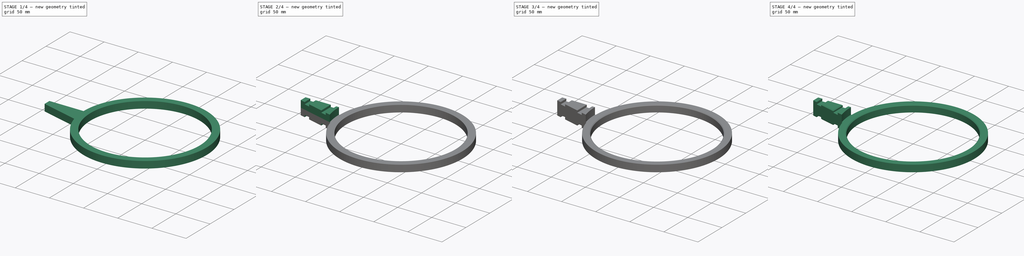
[diagram: build sequence overview — one tinted view per stage of 4, left to right]
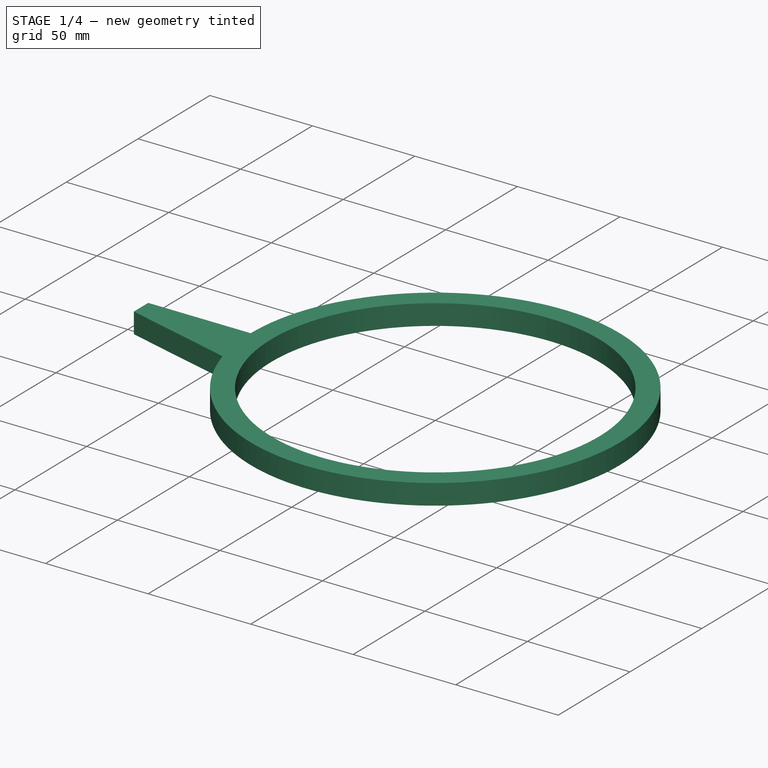
[diagram: stage 1 of 4 — iso view after this stage's code; geometry added in this stage tinted green]
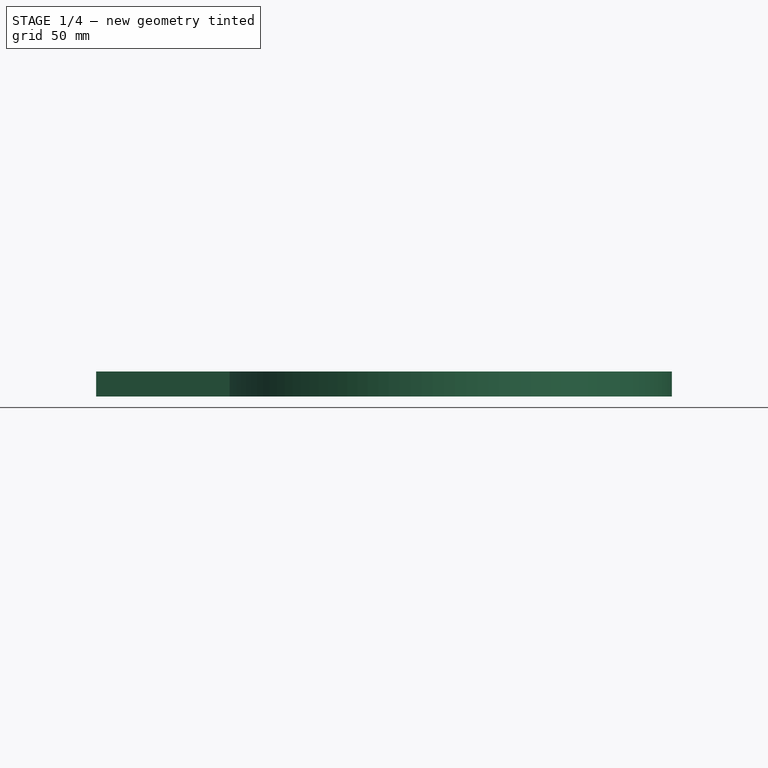
[diagram: stage 1 of 4 — front view after this stage's code; geometry added in this stage tinted green]
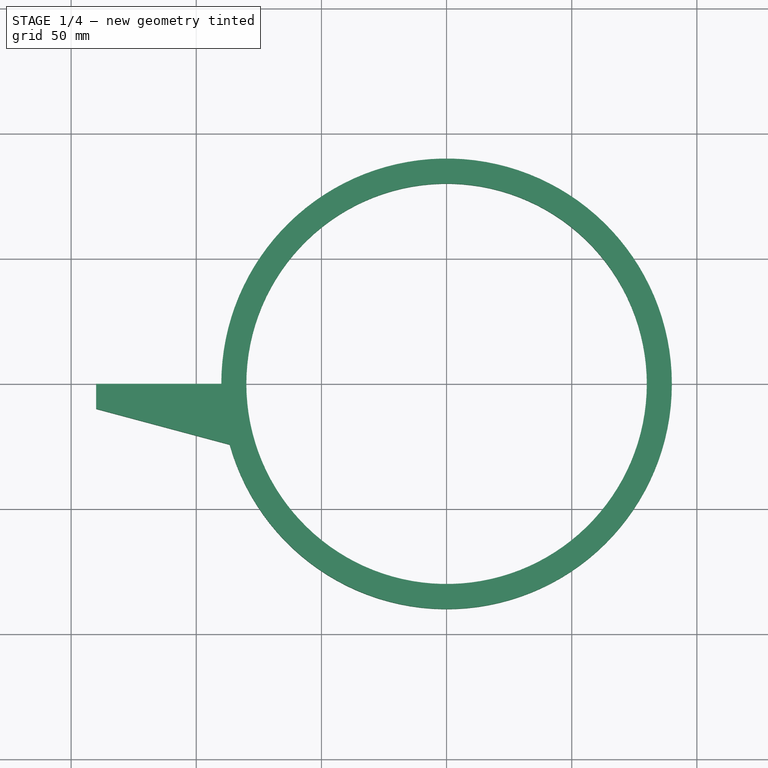
[diagram: stage 1 of 4 — top view after this stage's code; geometry added in this stage tinted green]
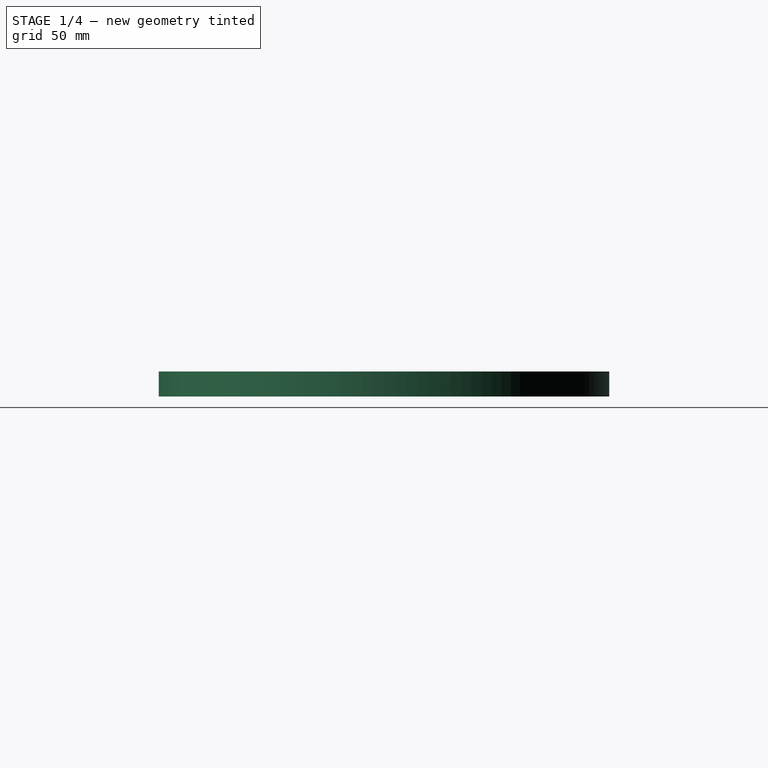
[diagram: stage 1 of 4 — right view after this stage's code; geometry added in this stage tinted green]
FCSTD DOCUMENT  (FreeCAD 0.18.3R)
Label: fluegel
License: All rights reserved
LicenseURL: http://en.wikipedia.org/wiki/All_rights_reserved
objects: Sketcher::SketchObject×6, PartDesign::Chamfer×4, PartDesign::Pad×3, PartDesign::Pocket×2, PartDesign::Body×1
note: 21 computed .brp shape members not serialized (recipe doc carries the construction recipe); baked Part::Feature solids carry a one-line shape summary decoded from their .brp

FEATURE [Sketcher::SketchObject] Sketch
  MapMode = 5
  Support = -> [XY_Plane]
  sketch-geometry (2):
    g0: Circle CenterX=0 CenterY=0 CenterZ=0 NormalX=0 NormalY=0 NormalZ=1 AngleXU=0 Radius=80
    g1: Circle CenterX=0 CenterY=0 CenterZ=0 NormalX=0 NormalY=0 NormalZ=1 AngleXU=0 Radius=90
  constraints (4):
    c: Radius(g0) = 80
    c: Coincident(g-1,g0)
    c: Coincident(g1,g0)
    c: Radius(g1) = 90
FEATURE [PartDesign::Pad] Pad
  Length = 10
  Length2 = 100
  Profile = -> Sketch
  Type = 0
FEATURE [Sketcher::SketchObject] Sketch001
  MapMode = 5
  Support = -> [XY_Plane]
  sketch-geometry (4):
    g0: LineSegment StartX=-86.6595 StartY=-24.2925 StartZ=0 EndX=-140 EndY=-10 EndZ=0
    g1: LineSegment StartX=-140 StartY=-10 StartZ=0 EndX=-140 EndY=1.07e-14 EndZ=0
    g2: LineSegment StartX=-140 StartY=1.1e-14 StartZ=0 EndX=-90 EndY=1.1e-14 EndZ=0
    g3: ArcOfCircle CenterX=0 CenterY=0 CenterZ=0 NormalX=0 NormalY=0 NormalZ=1 AngleXU=0 Radius=90 StartAngle=3.14159 EndAngle=3.4149
  constraints (12):
    c: Coincident(g0,g1)
    c: Coincident(g1,g2)
    c: Coincident(g3,g-1)
    c: Coincident(g3,g2)
    c: Coincident(g3,g0)
    c: Radius(g3) = 90
    c: Horizontal(g2)
    c: PointOnObject(g2,g-1)
    c: Vertical(g1)
    c: Distance(g2) = 50
    c: Distance(g1) = 10
    c: Angle(g0,g1) = 1.8326
FEATURE [PartDesign::Pad] Pad001
  BaseFeature = -> Pad
  Length = 10
  Length2 = 100
  Profile = -> Sketch001
  Type = 0
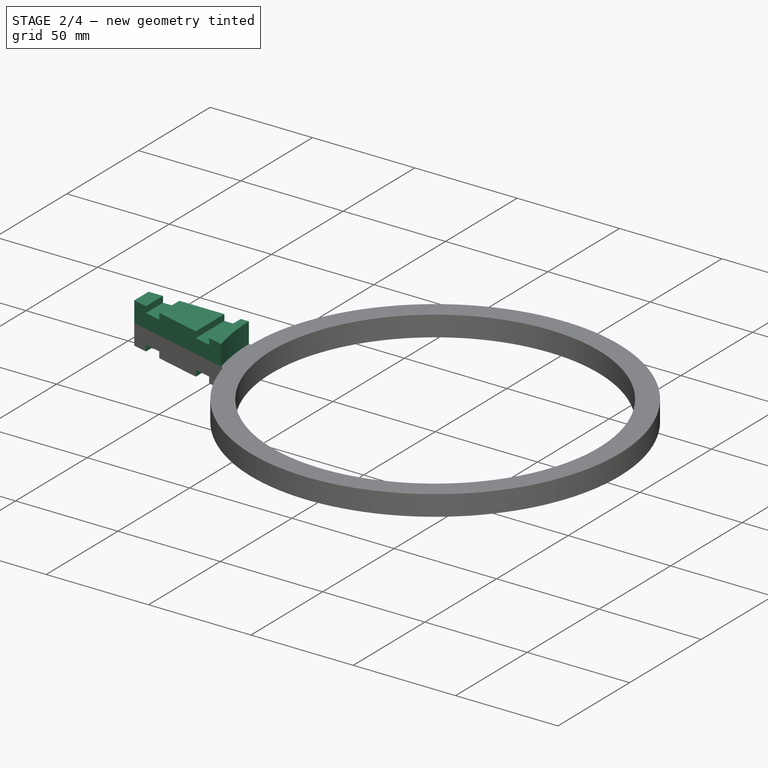
[diagram: stage 2 of 4 — iso view after this stage's code; geometry added in this stage tinted green]
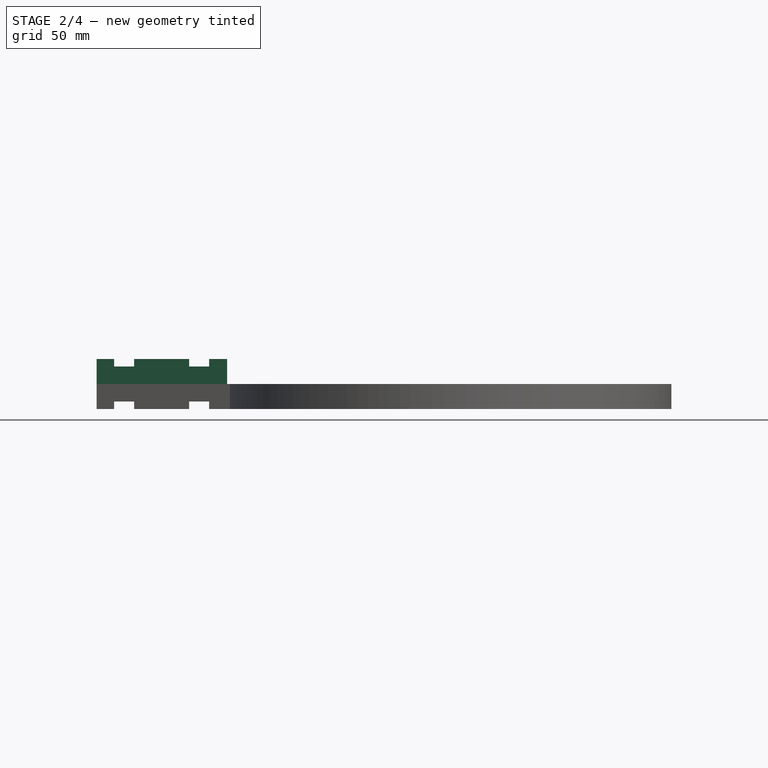
[diagram: stage 2 of 4 — front view after this stage's code; geometry added in this stage tinted green]
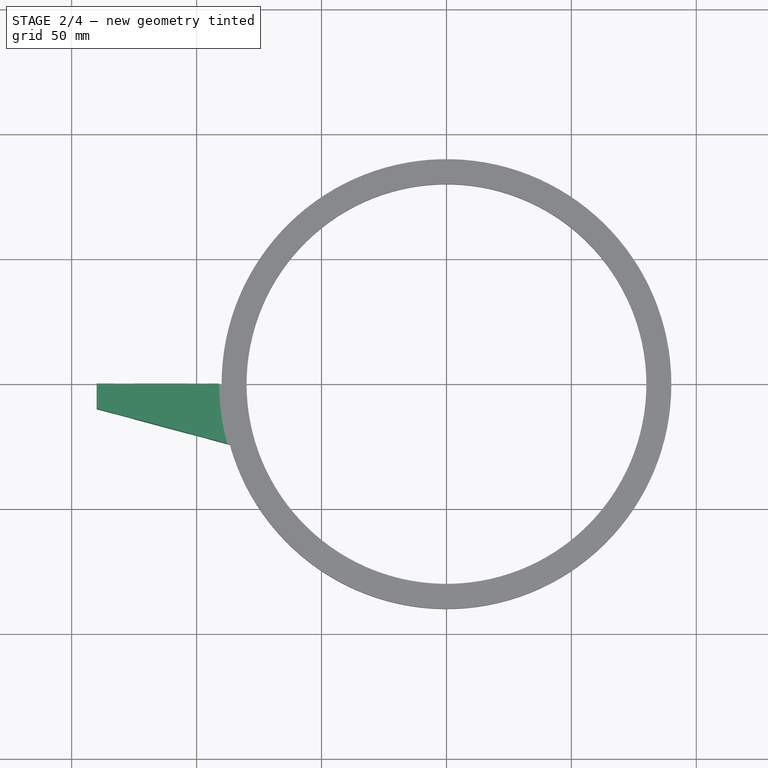
[diagram: stage 2 of 4 — top view after this stage's code; geometry added in this stage tinted green]
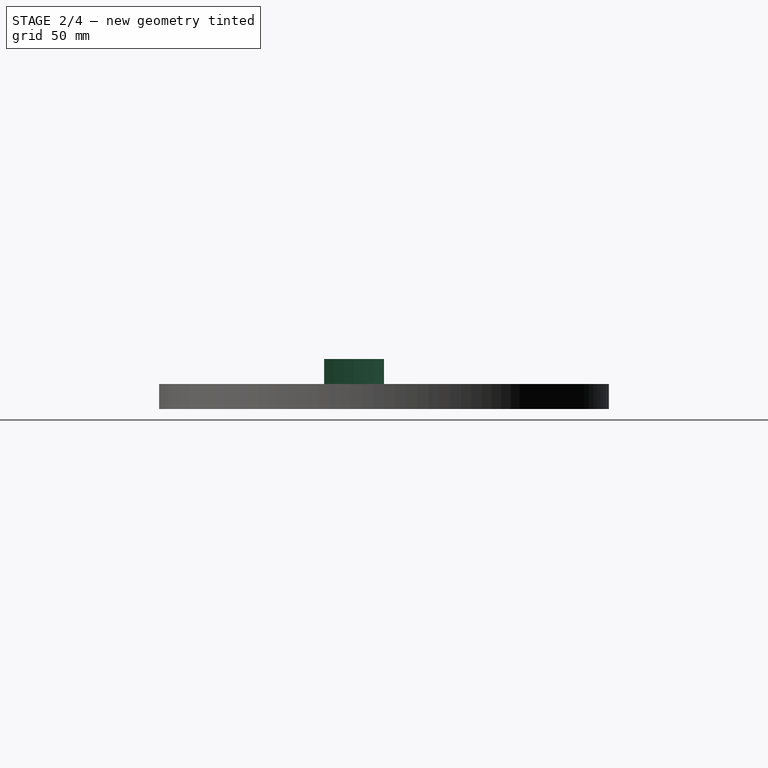
[diagram: stage 2 of 4 — right view after this stage's code; geometry added in this stage tinted green]
FEATURE [Sketcher::SketchObject] Sketch002
  MapMode = 5
  Support = -> [XY_Plane]
  sketch-geometry (4):
    g0: LineSegment StartX=-91 StartY=0 StartZ=0 EndX=-140 EndY=0 EndZ=0
    g1: LineSegment StartX=-140 StartY=0 StartZ=0 EndX=-140 EndY=-10 EndZ=0
    g2: LineSegment StartX=-140 StartY=-10 StartZ=0 EndX=-87.7803 EndY=-23.9922 EndZ=0
    g3: ArcOfCircle CenterX=0 CenterY=0 CenterZ=0 NormalX=0 NormalY=0 NormalZ=1 AngleXU=0 Radius=91 StartAngle=3.14159 EndAngle=3.4084
  constraints (12):
    c: Coincident(g0,g1)
    c: Coincident(g1,g2)
    c: Angle(g2,g1) = 1.8326
    c: Distance(g1) = 10
    c: Vertical(g1)
    c: Horizontal(g0)
    c: Coincident(g3,g-1)
    c: Coincident(g3,g0)
    c: Coincident(g2,g3)
    c: Radius(g3) = 91
    c: Distance(g0) = 49
    c: PointOnObject(g0,g-1)
FEATURE [PartDesign::Pad] Pad002
  BaseFeature = -> Pad001
  Length = 20
  Length2 = 100
  Profile = -> Sketch002
  Type = 0
FEATURE [Sketcher::SketchObject] Sketch003
  MapMode = 5
  Placement = pos=(0,0,0) rot=(1,0,0;1.5708rad)
  Support = -> [XZ_Plane]
  sketch-geometry (16):
    g0: LineSegment StartX=-133 StartY=20 StartZ=0 EndX=-125 EndY=20 EndZ=0
    g1: LineSegment StartX=-125 StartY=20 StartZ=0 EndX=-125 EndY=17 EndZ=0
    g2: LineSegment StartX=-125 StartY=17 StartZ=0 EndX=-133 EndY=17 EndZ=0
    g3: LineSegment StartX=-133 StartY=17 StartZ=0 EndX=-133 EndY=20 EndZ=0
    g4: LineSegment StartX=-103 StartY=20 StartZ=0 EndX=-95 EndY=20 EndZ=0
    g5: LineSegment StartX=-95 StartY=20 StartZ=0 EndX=-95 EndY=17 EndZ=0
    g6: LineSegment StartX=-95 StartY=17 StartZ=0 EndX=-103 EndY=17 EndZ=0
    g7: LineSegment StartX=-103 StartY=17 StartZ=0 EndX=-103 EndY=20 EndZ=0
    g8: LineSegment StartX=-133 StartY=0 StartZ=0 EndX=-125 EndY=0 EndZ=0
    g9: LineSegment StartX=-125 StartY=0 StartZ=0 EndX=-125 EndY=3 EndZ=0
    g10: LineSegment StartX=-125 StartY=3 StartZ=0 EndX=-133 EndY=3 EndZ=0
    g11: LineSegment StartX=-133 StartY=3 StartZ=0 EndX=-133 EndY=0 EndZ=0
    g12: LineSegment StartX=-103 StartY=0 StartZ=0 EndX=-95 EndY=0 EndZ=0
    g13: LineSegment StartX=-95 StartY=0 StartZ=0 EndX=-95 EndY=3 EndZ=0
    g14: LineSegment StartX=-95 StartY=3 StartZ=0 EndX=-103 EndY=3 EndZ=0
    g15: LineSegment StartX=-103 StartY=3 StartZ=0 EndX=-103 EndY=0 EndZ=0
  constraints (48):
    c: Coincident(g0,g1)
    c: Coincident(g1,g2)
    c: Coincident(g2,g3)
    c: Coincident(g3,g0)
    c: Horizontal(g0)
    c: Horizontal(g2)
    c: Vertical(g1)
    c: Vertical(g3)
    c: Coincident(g4,g5)
    c: Coincident(g5,g6)
    c: Coincident(g6,g7)
    c: Coincident(g7,g4)
    c: Horizontal(g4)
    c: Horizontal(g6)
    c: Vertical(g5)
    c: Vertical(g7)
    c: Coincident(g8,g9)
    c: Coincident(g9,g10)
    c: Coincident(g10,g11)
    c: Coincident(g11,g8)
    c: Horizontal(g8)
    c: Horizontal(g10)
    c: Vertical(g9)
    c: Vertical(g11)
    c: Coincident(g12,g13)
    c: Coincident(g13,g14)
    c: Coincident(g14,g15)
    c: Coincident(g15,g12)
    c: Horizontal(g12)
    c: Horizontal(g14)
    c: Vertical(g13)
    c: Vertical(g15)
    c: PointOnObject(g8,g-1)
    c: PointOnObject(g12,g-1)
    c: Distance(g9) = 3
    c: Equal(g15,g9)
    c: Equal(g1,g9)
    c: Equal(g9,g7)
    c: Distance(g10) = 8
    c: Equal(g0,g10)
    c: Equal(g10,g4)
    c: Equal(g14,g10)
    c: DistanceY(g-1,g4) = 20
    c: DistanceY(g-1,g0) = 20
    c: DistanceX(g12,g-1) = 95
    c: DistanceX(g5,g-1) = 95
    c: DistanceX(g1,g-1) = 125
    c: DistanceX(g8,g-1) = 125
FEATURE [PartDesign::Pocket] Pocket
  BaseFeature = -> Pad002
  Length = 52
  Length2 = 100
  Midplane = true
  Profile = -> Sketch003
  Type = 0
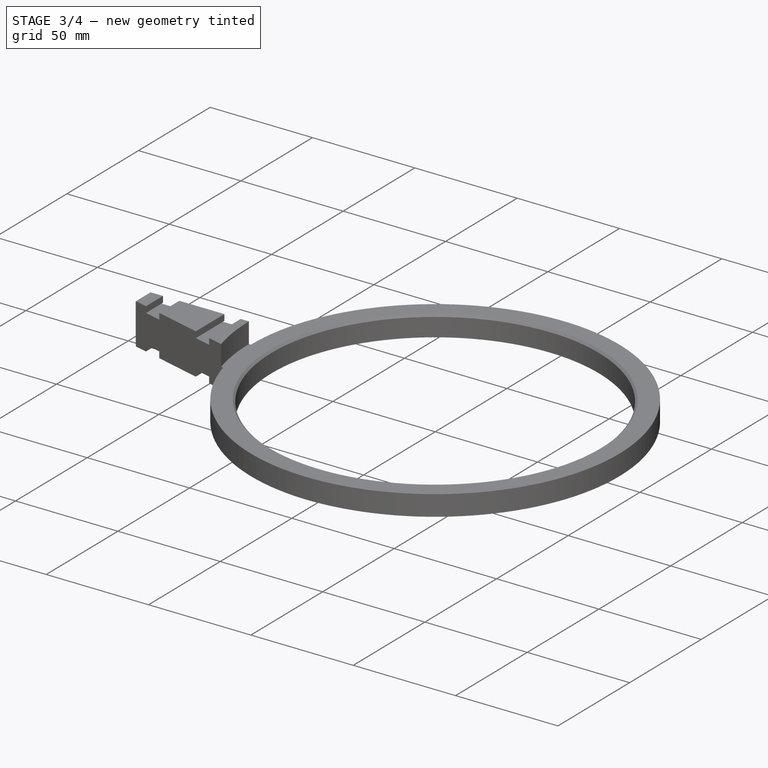
[diagram: stage 3 of 4 — iso view after this stage's code; geometry added in this stage tinted green]
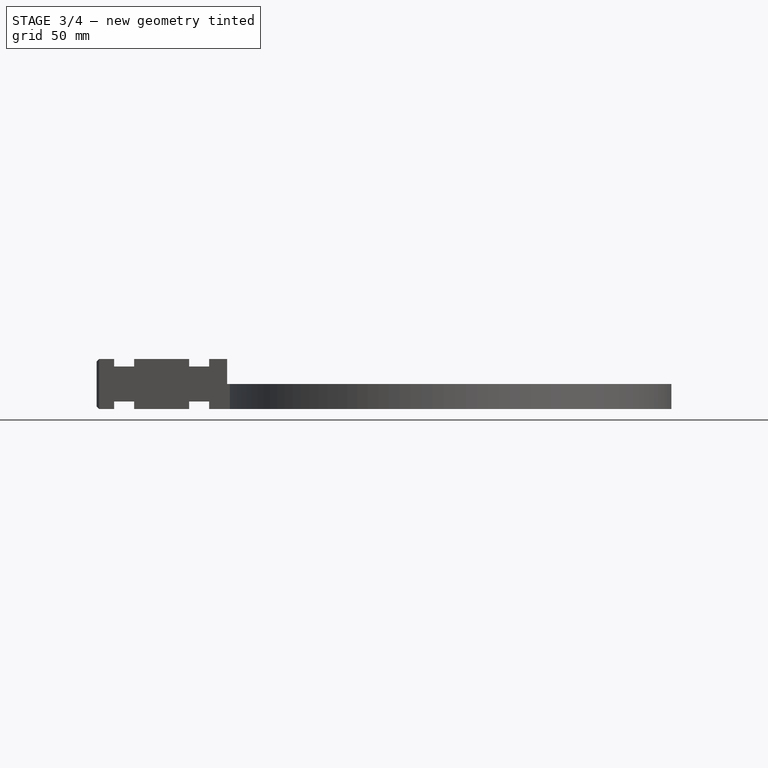
[diagram: stage 3 of 4 — front view after this stage's code; geometry added in this stage tinted green]
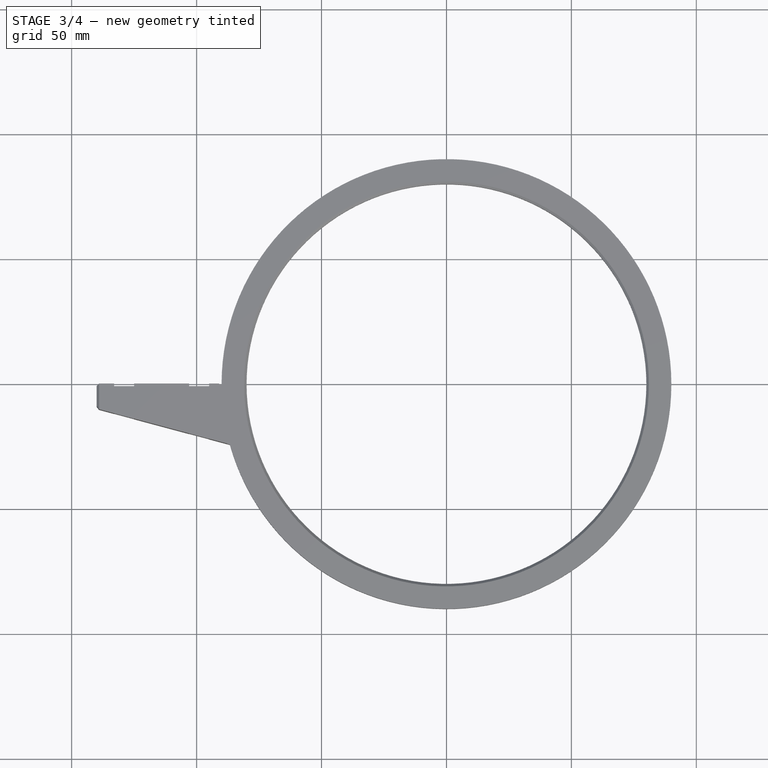
[diagram: stage 3 of 4 — top view after this stage's code; geometry added in this stage tinted green]
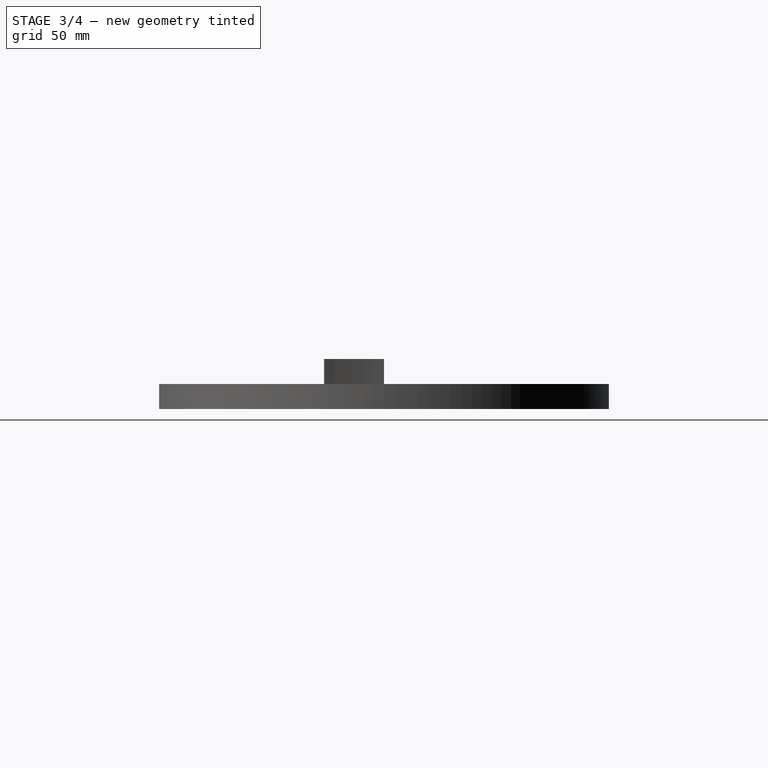
[diagram: stage 3 of 4 — right view after this stage's code; geometry added in this stage tinted green]
FEATURE [Sketcher::SketchObject] Sketch004
  MapMode = 5
  Support = -> [XY_Plane]
FEATURE [Sketcher::SketchObject] Sketch005
  MapMode = 5
  Placement = pos=(0,0,0) rot=(1,0,0;1.5708rad)
  Support = -> [XZ_Plane]
  sketch-geometry (4):
    g0: LineSegment StartX=-140 StartY=17 StartZ=0 EndX=-94 EndY=17 EndZ=0
    g1: LineSegment StartX=-94 StartY=17 StartZ=0 EndX=-94 EndY=3 EndZ=0
    g2: LineSegment StartX=-94 StartY=3 StartZ=0 EndX=-140 EndY=3 EndZ=0
    g3: LineSegment StartX=-140 StartY=3 StartZ=0 EndX=-140 EndY=17 EndZ=0
  constraints (12):
    c: Coincident(g0,g1)
    c: Coincident(g1,g2)
    c: Coincident(g2,g3)
    c: Coincident(g3,g0)
    c: Horizontal(g0)
    c: Horizontal(g2)
    c: Vertical(g1)
    c: Vertical(g3)
    c: DistanceY(g-1,g2) = 3
    c: DistanceY(g-1,g0) = 17
    c: DistanceX(g1,g-1) = 94
    c: DistanceX(g2,g-1) = 140
FEATURE [PartDesign::Pocket] Pocket001
  BaseFeature = -> Pocket
  Length = 2
  Length2 = 100
  Midplane = true
  Profile = -> Sketch005
  Type = 0
FEATURE [PartDesign::Chamfer] Chamfer
  Base = -> Pocket001 [Edge13]
  BaseFeature = -> Pocket001
  Size = 1
FEATURE [PartDesign::Chamfer] Chamfer001
  Base = -> Chamfer [Face29,Face38]
  BaseFeature = -> Chamfer
  Size = 1
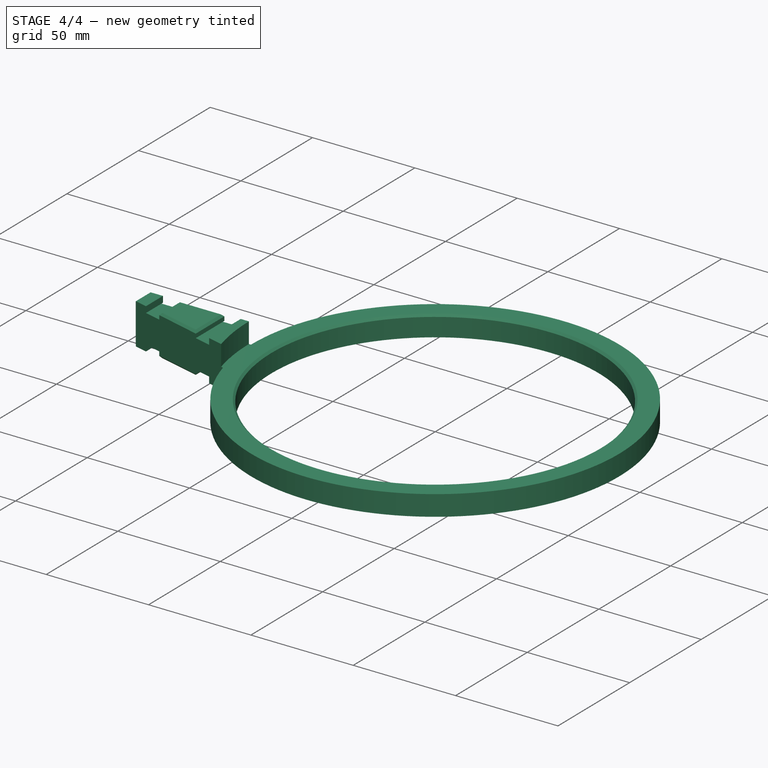
[diagram: stage 4 of 4 — iso view after this stage's code; geometry added in this stage tinted green]
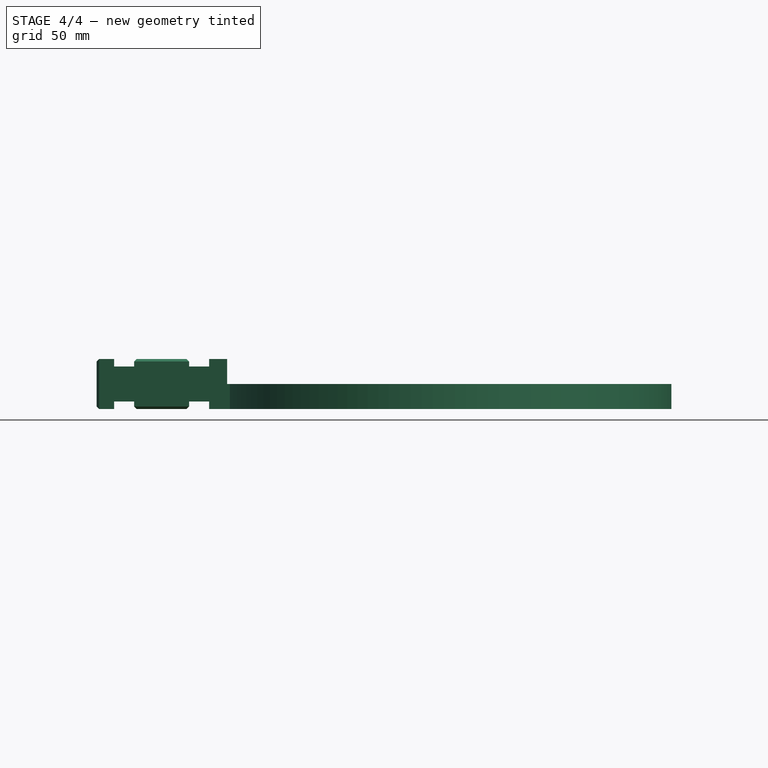
[diagram: stage 4 of 4 — front view after this stage's code; geometry added in this stage tinted green]
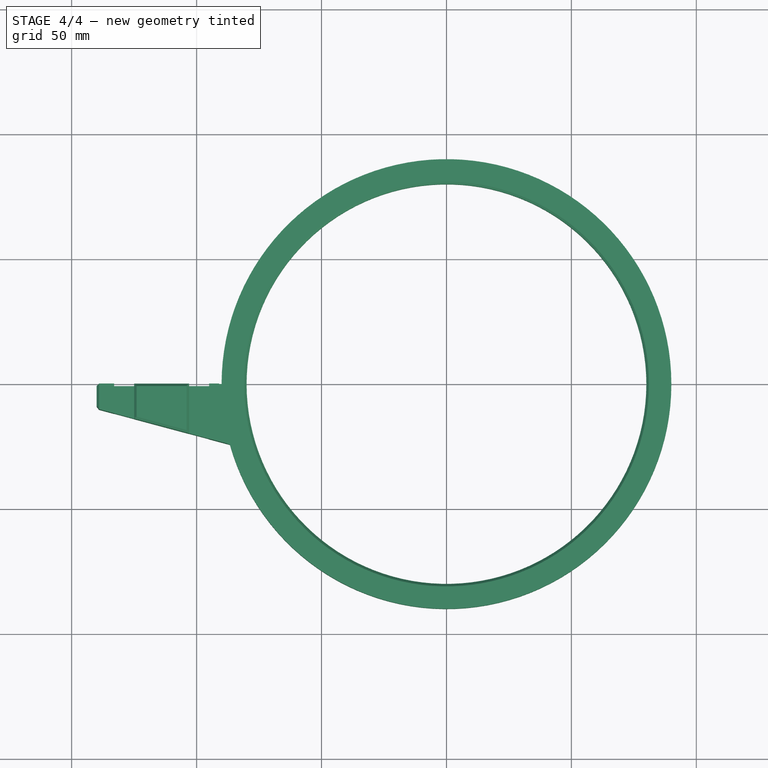
[diagram: stage 4 of 4 — top view after this stage's code; geometry added in this stage tinted green]
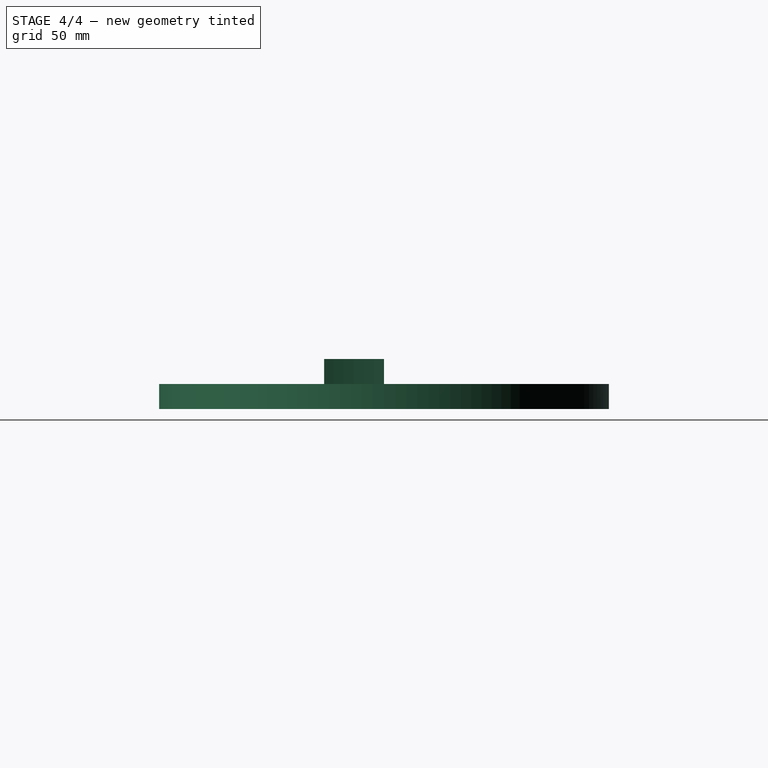
[diagram: stage 4 of 4 — right view after this stage's code; geometry added in this stage tinted green]
FEATURE [PartDesign::Chamfer] Chamfer002
  Base = -> Chamfer001 [Face10]
  BaseFeature = -> Chamfer001
  Size = 1
FEATURE [PartDesign::Chamfer] Chamfer003
  Base = -> Chamfer002 [Face35]
  BaseFeature = -> Chamfer002
  Size = 1
FEATURE [PartDesign::Body] Body
  Group = -> [Sketch,Pad,Sketch001,Pad001,Sketch002,Pad002,Sketch003,Pocket,Sketch004,Sketch005,Pocket001,Chamfer,Chamfer001,Chamfer002,Chamfer003]
  Origin = -> Origin
  Tip = -> Chamfer003
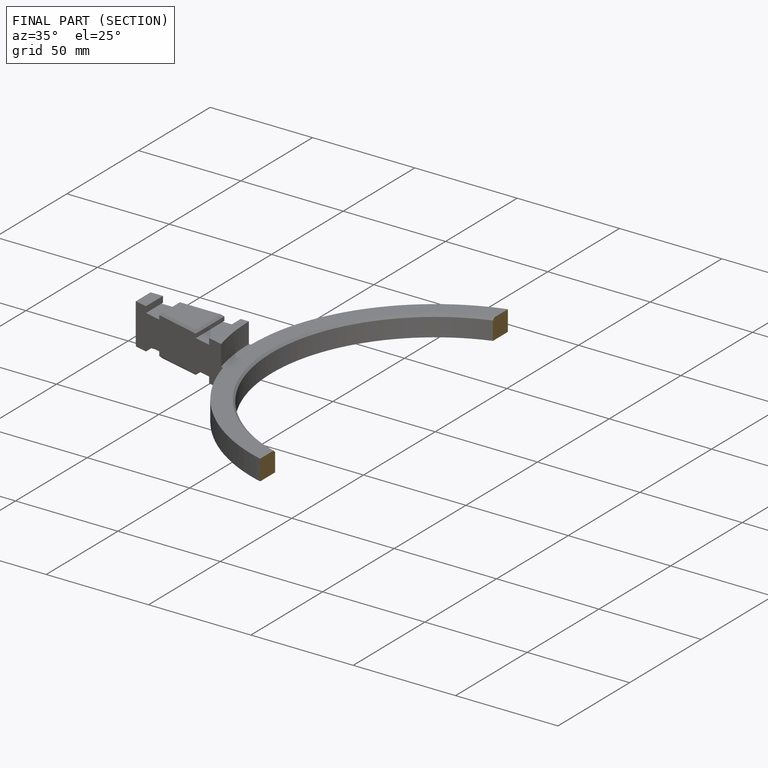
[diagram: finished part — half-section view (interior)]
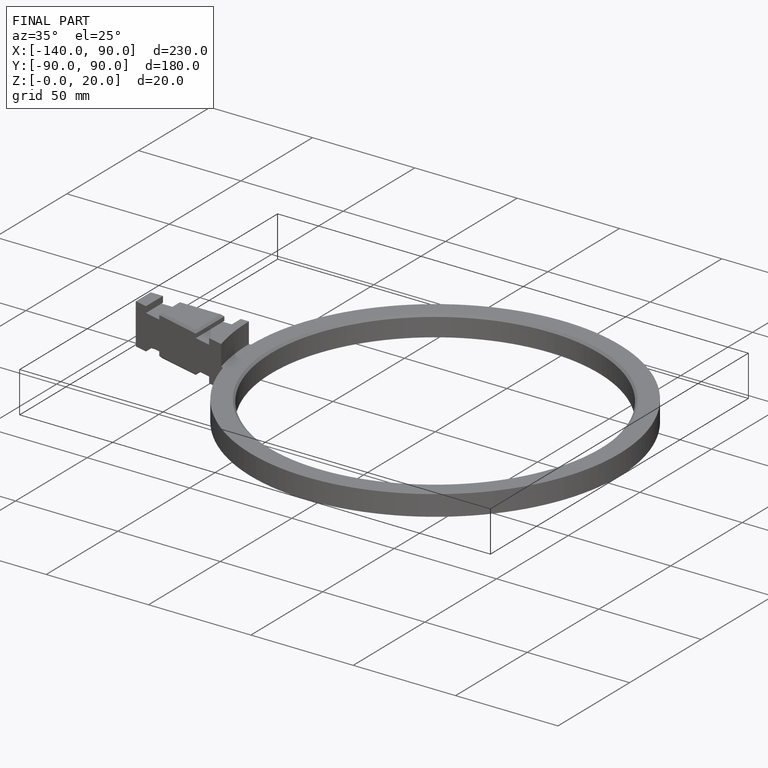
[diagram: finished part — iso view with bounding-box wireframe]
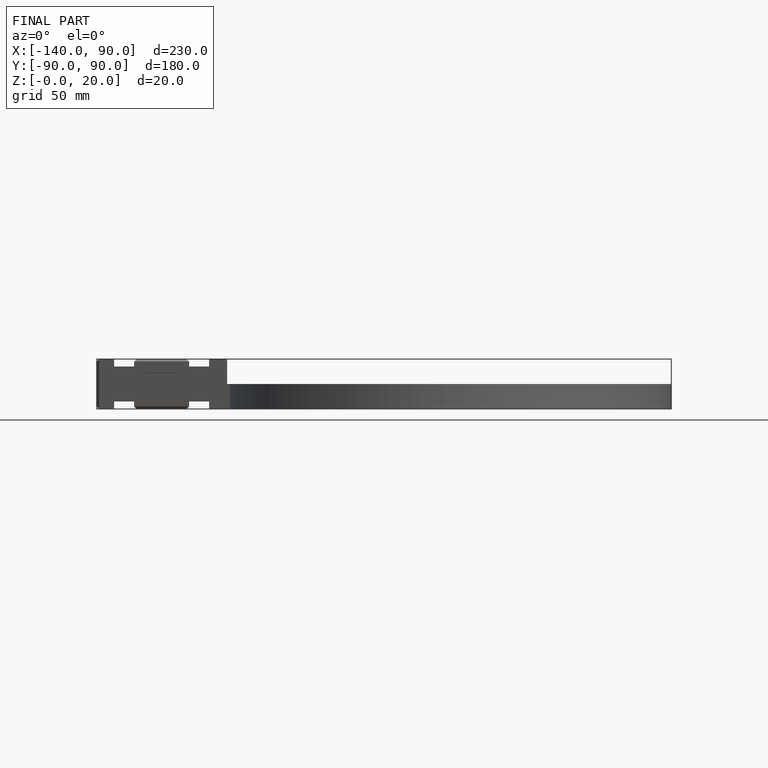
[diagram: finished part — front view with bounding-box wireframe]
